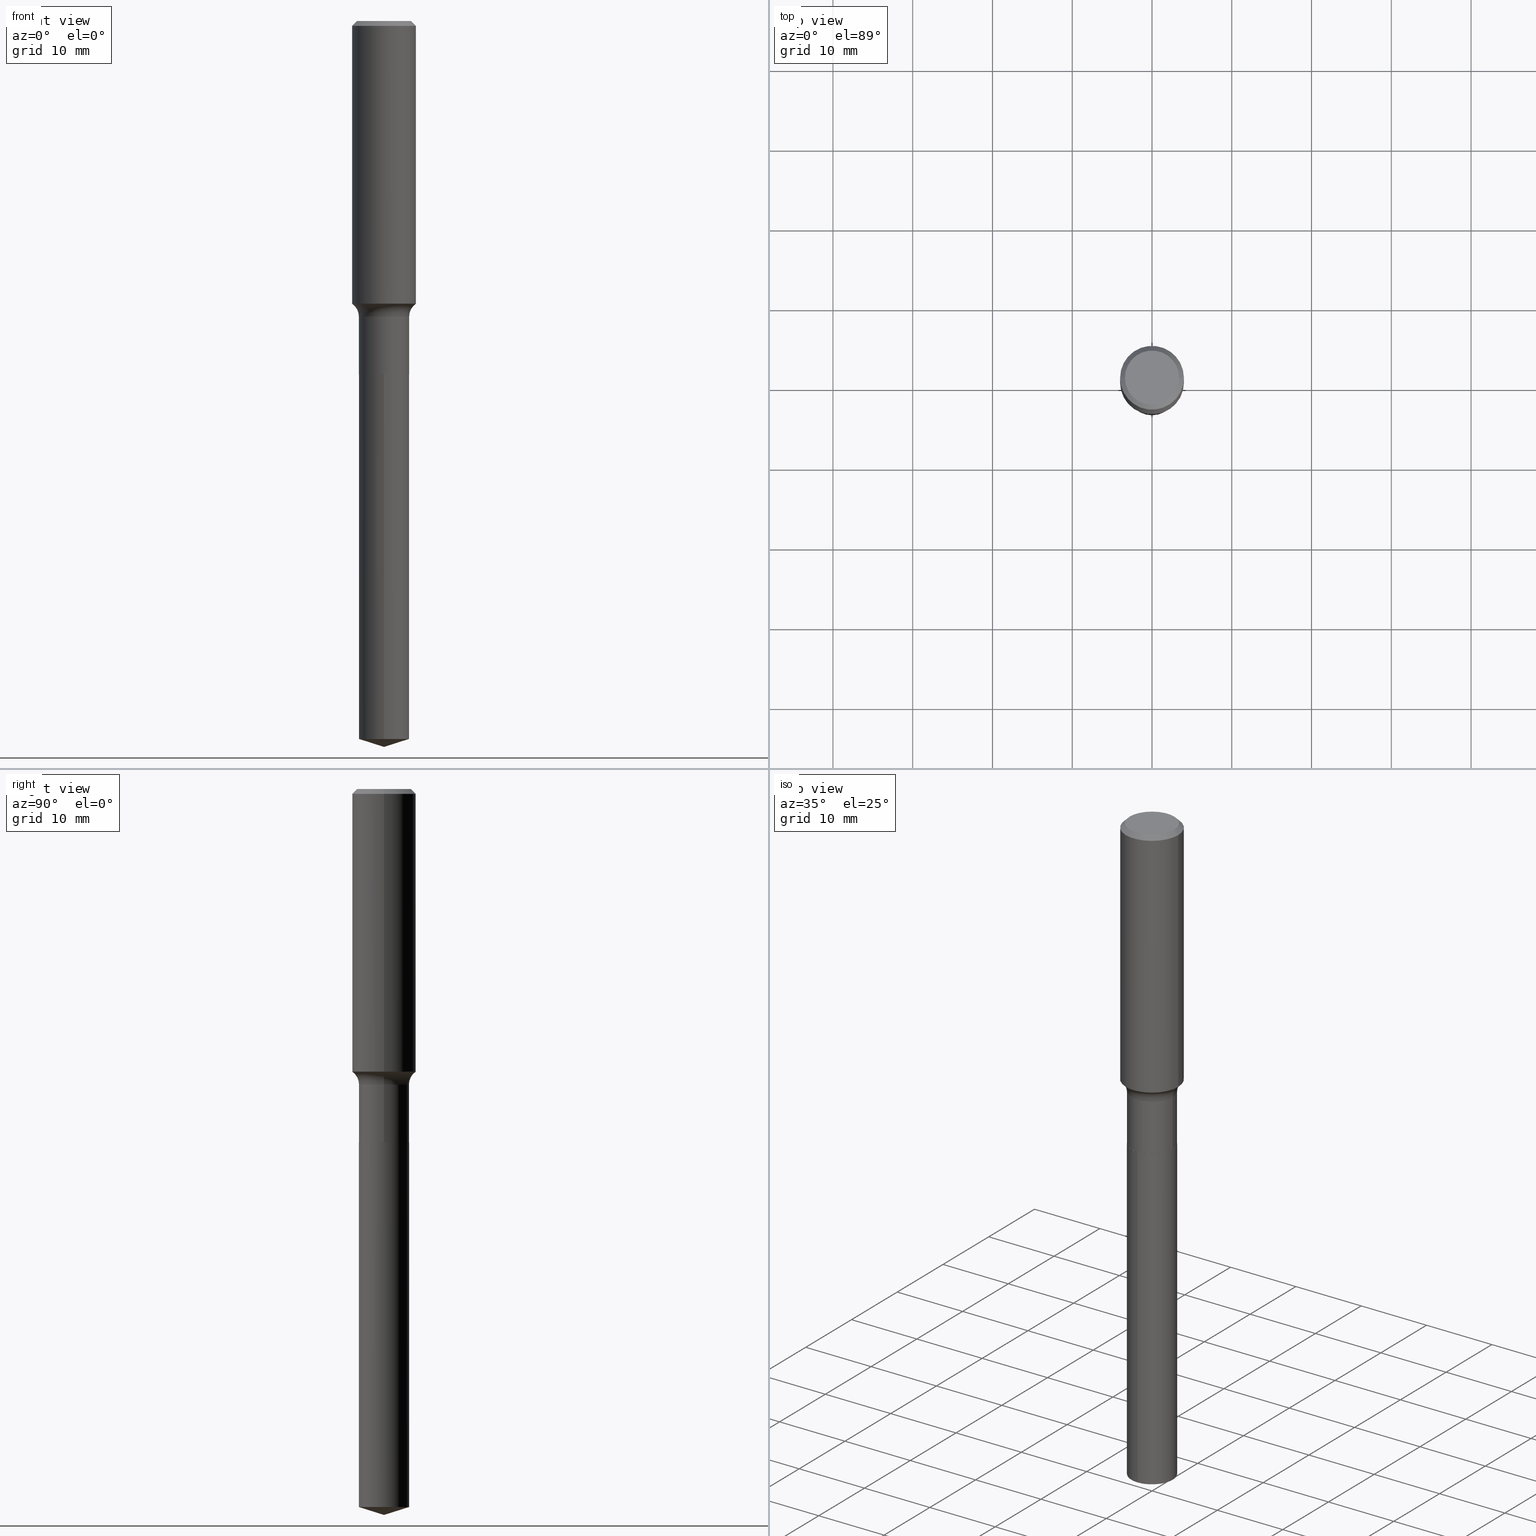
[diagram: canonical four-view strip — front | top / right | iso, engineering-drawing reading convention]
A machine part, canonical four-view strip (front | top / right | iso — engineering-drawing reading convention). The complete STEP part file that produces these views, byte-faithful:
ISO-10303-21;
HEADER;
FILE_DESCRIPTION (( 'STEP AP203' ),
    '1' );
FILE_NAME ('64135.STEP',
    '2024-04-19T15:18:33',
    ( '' ),
    ( '' ),
    'SwSTEP 2.0',
    'SolidWorks 2023',
    '' );
FILE_SCHEMA (( 'CONFIG_CONTROL_DESIGN' ));
ENDSEC;

DATA;
#1 = EDGE_CURVE ( 'NONE', #79, #7, #475, .T. ) ;
#2 = CALENDAR_DATE ( 2024, 19, 4 ) ;
#3 = CONICAL_SURFACE ( 'NONE', #369, 0.1575000000000000011, 0.7853981633974447263 ) ;
#4 = ORIENTED_EDGE ( 'NONE', *, *, #486, .F. ) ;
#5 = PLANE ( 'NONE',  #53 ) ;
#6 = CC_DESIGN_APPROVAL ( #67, ( #309 ) ) ;
#7 = VERTEX_POINT ( 'NONE', #90 ) ;
#8 = APPROVAL ( #16, 'UNSPECIFIED' ) ;
#9 = VERTEX_POINT ( 'NONE', #329 ) ;
#10 = CONICAL_SURFACE ( 'NONE', #306, 0.1234999999999999987, 0.7853981633975507526 ) ;
#11 = EDGE_LOOP ( 'NONE', ( #439, #201, #348, #152 ) ) ;
#12 = CIRCLE ( 'NONE', #465, 0.1239999999999999991 ) ;
#13 = PRODUCT_DEFINITION_FORMATION_WITH_SPECIFIED_SOURCE ( 'ANY', '', #284, .NOT_KNOWN. ) ;
#14 = ADVANCED_FACE ( 'NONE', ( #102 ), #214, .T. ) ;
#15 = EDGE_LOOP ( 'NONE', ( #200, #193, #415, #398 ) ) ;
#16 = APPROVAL_STATUS ( 'not_yet_approved' ) ;
#17 = VECTOR ( 'NONE', #253, 39.37007874015748143 ) ;
#18 = EDGE_LOOP ( 'NONE', ( #191, #434 ) ) ;
#19 = CARTESIAN_POINT ( 'NONE',  ( 3.567694441343495447E-29, -5.093722125238264272E-15, -1.458899999999999864 ) ) ;
#20 = CARTESIAN_POINT ( 'NONE',  ( 0.2019999999999999574, -6.504280586130890432E-15, -1.458899999999999864 ) ) ;
#21 = CARTESIAN_POINT ( 'NONE',  ( 0.1575000000000000011, -1.163014681279185964E-15, -0.02362500000000015282 ) ) ;
#22 = CIRCLE ( 'NONE', #84, 0.1338749999999999940 ) ;
#23 = CC_DESIGN_APPROVAL ( #278, ( #13 ) ) ;
#24 = CARTESIAN_POINT ( 'NONE',  ( 5.777420054612421980E-31, -8.248624663016985234E-17, -0.02362500000000015282 ) ) ;
#25 = CARTESIAN_POINT ( 'NONE',  ( 8.761492879941189583E-29, -1.250877010586368269E-14, -3.582699999999999996 ) ) ;
#26 = DIRECTION ( 'NONE',  ( 0.000000000000000000, 0.000000000000000000, 1.000000000000000000 ) ) ;
#27 = CARTESIAN_POINT ( 'NONE',  ( 4.263919410464404773E-29, -6.087746862406909425E-15, -1.743600000000000261 ) ) ;
#28 = LINE ( 'NONE', #202, #355 ) ;
#29 = DIRECTION ( 'NONE',  ( -2.445500008357157886E-29, 3.491436655556893596E-15, 1.000000000000000000 ) ) ;
#30 = ORIENTED_EDGE ( 'NONE', *, *, #263, .F. ) ;
#31 = CARTESIAN_POINT ( 'NONE',  ( 0.1575000000000001676, -5.969872642905350686E-15, -1.394839481737968789 ) ) ;
#32 = DIRECTION ( 'NONE',  ( -6.659769872151628144E-15, -0.9537169507482261555, 0.3007057995042750620 ) ) ;
#33 = DIRECTION ( 'NONE',  ( -6.982962677686265922E-15, -1.000000000000000000, 3.500519750498720604E-15 ) ) ;
#34 = DIRECTION ( 'NONE',  ( -2.445468806185136597E-29, 3.491481338843145583E-15, 1.000000000000000000 ) ) ;
#35 =( NAMED_UNIT ( * ) SI_UNIT ( $, .STERADIAN. ) SOLID_ANGLE_UNIT ( ) );
#36 = DIRECTION ( 'NONE',  ( -2.445468806185136877E-29, 3.491481338843145188E-15, 1.000000000000000000 ) ) ;
#37 = AXIS2_PLACEMENT_3D ( 'NONE', #215, #339, #373 ) ;
#38 = APPROVAL_STATUS ( 'not_yet_approved' ) ;
#39 = AXIS2_PLACEMENT_3D ( 'NONE', #473, #140, #63 ) ;
#40 = DIRECTION ( 'NONE',  ( -2.438088387897960049E-29, 3.491481338843145188E-15, 1.000000000000000000 ) ) ;
#41 = VERTEX_POINT ( 'NONE', #92 ) ;
#42 = PERSON_AND_ORGANIZATION ( #224, #330 ) ;
#43 = ORIENTED_EDGE ( 'NONE', *, *, #178, .F. ) ;
#44 = DIRECTION ( 'NONE',  ( 1.000000000000000000, -6.982962677686268288E-15, 4.883557194083113462E-29 ) ) ;
#45 = ADVANCED_FACE ( 'NONE', ( #405 ), #10, .T. ) ;
#46 = EDGE_LOOP ( 'NONE', ( #123, #422, #184 ) ) ;
#47 = EDGE_CURVE ( 'NONE', #356, #233, #137, .T. ) ;
#48 = ORIENTED_EDGE ( 'NONE', *, *, #104, .F. ) ;
#49 = PERSON_AND_ORGANIZATION ( #224, #330 ) ;
#50 = LOCAL_TIME ( 11, 18, 33.00000000000000000, #268 ) ;
#51 = VERTEX_POINT ( 'NONE', #56 ) ;
#52 = EDGE_LOOP ( 'NONE', ( #164, #275, #391, #225 ) ) ;
#53 = AXIS2_PLACEMENT_3D ( 'NONE', #108, #40, #266 ) ;
#54 = CARTESIAN_POINT ( 'NONE',  ( 8.761493834334397547E-29, -1.250877010586368269E-14, -3.582699999999999996 ) ) ;
#55 = DIRECTION ( 'NONE',  ( -2.445468806185136597E-29, 3.491481338843145583E-15, 1.000000000000000000 ) ) ;
#56 = CARTESIAN_POINT ( 'NONE',  ( -0.1234999999999999987, -5.209323097238496402E-15, -1.744100000000000206 ) ) ;
#57 = DIRECTION ( 'NONE',  ( -2.445500008357157886E-29, 3.491436655556893596E-15, 1.000000000000000000 ) ) ;
#58 = COORDINATED_UNIVERSAL_TIME_OFFSET ( 5, 0, .BEHIND. ) ;
#59 = LINE ( 'NONE', #300, #378 ) ;
#60 = VECTOR ( 'NONE', #36, 39.37007874015748143 ) ;
#61 = AXIS2_PLACEMENT_3D ( 'NONE', #73, #316, #418 ) ;
#62 = DIRECTION ( 'NONE',  ( -1.000000000000000000, 7.105427357600997914E-15, 0.000000000000000000 ) ) ;
#63 = DIRECTION ( 'NONE',  ( 1.000000000000000000, -6.982962677686266711E-15, 4.876176775795935232E-29 ) ) ;
#64 = CARTESIAN_POINT ( 'NONE',  ( 8.665826624568987053E-29, -1.237234316511408232E-14, -3.543602950179006061 ) ) ;
#65 = CYLINDRICAL_SURFACE ( 'NONE', #158, 0.1239999999999999852 ) ;
#66 = DIRECTION ( 'NONE',  ( -2.445500008357157886E-29, 3.491436655556893596E-15, 1.000000000000000000 ) ) ;
#67 = APPROVAL ( #38, 'UNSPECIFIED' ) ;
#68 = AXIS2_PLACEMENT_3D ( 'NONE', #458, #489, #310 ) ;
#69 = CARTESIAN_POINT ( 'NONE',  ( 0.1575000000000000844, -1.099816621735587677E-15, 7.679978421878603638E-30 ) ) ;
#70 = AXIS2_PLACEMENT_3D ( 'NONE', #20, #243, #338 ) ;
#71 = LOCAL_TIME ( 11, 18, 33.00000000000000000, #452 ) ;
#72 = PERSON_AND_ORGANIZATION ( #224, #330 ) ;
#73 = CARTESIAN_POINT ( 'NONE',  ( 8.665826624568987053E-29, -1.237234316511408232E-14, -3.543602950179006061 ) ) ;
#74 = ORIENTED_EDGE ( 'NONE', *, *, #298, .T. ) ;
#75 = ORIENTED_EDGE ( 'NONE', *, *, #423, .F. ) ;
#76 = APPROVAL_DATE_TIME ( #187, #67 ) ;
#77 = ORIENTED_EDGE ( 'NONE', *, *, #474, .F. ) ;
#78 = PERSON_AND_ORGANIZATION_ROLE ( 'creator' ) ;
#79 = VERTEX_POINT ( 'NONE', #365 ) ;
#80 = ORIENTED_EDGE ( 'NONE', *, *, #344, .F. ) ;
#81 = CLOSED_SHELL ( 'NONE', ( #14, #440, #389, #295, #334 ) ) ;
#82 = ADVANCED_FACE ( 'NONE', ( #477 ), #146, .T. ) ;
#83 = ORIENTED_EDGE ( 'NONE', *, *, #486, .T. ) ;
#84 = AXIS2_PLACEMENT_3D ( 'NONE', #463, #113, #431 ) ;
#85 = DIRECTION ( 'NONE',  ( -6.982962677686265922E-15, -1.000000000000000000, 4.406206441393973340E-15 ) ) ;
#86 = AXIS2_PLACEMENT_3D ( 'NONE', #199, #331, #478 ) ;
#87 = VECTOR ( 'NONE', #410, 39.37007874015748143 ) ;
#88 = EDGE_CURVE ( 'NONE', #9, #314, #469, .T. ) ;
#89 = ADVANCED_FACE ( 'NONE', ( #294 ), #65, .T. ) ;
#90 = CARTESIAN_POINT ( 'NONE',  ( -0.1239999999999999575, -4.709661501480063019E-15, -1.458899999999999864 ) ) ;
#91 = CYLINDRICAL_SURFACE ( 'NONE', #147, 0.1575000000000000844 ) ;
#92 = CARTESIAN_POINT ( 'NONE',  ( -8.658873720330101554E-16, -0.1240000000000123503, -3.543602950179005617 ) ) ;
#93 = DIRECTION ( 'NONE',  ( -2.445468806185136597E-29, 3.491481338843145583E-15, 1.000000000000000000 ) ) ;
#94 = CARTESIAN_POINT ( 'NONE',  ( -0.1240000000000000130, -4.709661501480063019E-15, -1.743600000000000261 ) ) ;
#95 = EDGE_LOOP ( 'NONE', ( #74, #148 ) ) ;
#96 = CARTESIAN_POINT ( 'NONE',  ( -8.658873720330542330E-16, -0.1240000000000060915, -1.744099999999999540 ) ) ;
#97 = DIRECTION ( 'NONE',  ( 1.000000000000000000, -6.982962677686268288E-15, 4.883557194083113462E-29 ) ) ;
#98 = CIRCLE ( 'NONE', #449, 0.1239999999999999991 ) ;
#99 = VECTOR ( 'NONE', #103, 39.37007874015748854 ) ;
#100 = ORIENTED_EDGE ( 'NONE', *, *, #432, .F. ) ;
#101 = EDGE_CURVE ( 'NONE', #197, #41, #181, .T. ) ;
#102 = FACE_OUTER_BOUND ( 'NONE', #354, .T. ) ;
#103 = DIRECTION ( 'NONE',  ( 6.776566513254254982E-15, 0.9537169507482283759, 0.3007057995042684562 ) ) ;
#104 = EDGE_CURVE ( 'NONE', #462, #51, #239, .T. ) ;
#105 = CALENDAR_DATE ( 2024, 19, 4 ) ;
#106 = CIRCLE ( 'NONE', #37, 0.1338749999999999940 ) ;
#107 = AXIS2_PLACEMENT_3D ( 'NONE', #483, #481, #136 ) ;
#108 = CARTESIAN_POINT ( 'NONE',  ( 4.265142144867497014E-29, -6.089492603076330929E-15, -1.744100000000000206 ) ) ;
#109 = EDGE_LOOP ( 'NONE', ( #80, #251, #112, #77 ) ) ;
#110 = DATE_TIME_ROLE ( 'creation_date' ) ;
#111 = EDGE_CURVE ( 'NONE', #162, #9, #229, .T. ) ;
#112 = ORIENTED_EDGE ( 'NONE', *, *, #111, .T. ) ;
#113 = DIRECTION ( 'NONE',  ( -2.445468806185136597E-29, 3.491481338843145583E-15, 1.000000000000000000 ) ) ;
#114 = AXIS2_PLACEMENT_3D ( 'NONE', #291, #244, #368 ) ;
#115 =( GEOMETRIC_REPRESENTATION_CONTEXT ( 3 ) GLOBAL_UNCERTAINTY_ASSIGNED_CONTEXT ( ( #304 ) ) GLOBAL_UNIT_ASSIGNED_CONTEXT ( ( #480, #212, #35 ) ) REPRESENTATION_CONTEXT ( 'NONE', 'WORKASPACE' ) );
#116 = CARTESIAN_POINT ( 'NONE',  ( 0.1239999999999999991, -6.953634234440005961E-15, -1.743600000000000261 ) ) ;
#117 = CC_DESIGN_PERSON_AND_ORGANIZATION_ASSIGNMENT ( #264, #353, ( #13 ) ) ;
#118 = ORIENTED_EDGE ( 'NONE', *, *, #196, .T. ) ;
#119 = DIRECTION ( 'NONE',  ( -2.445468806185136597E-29, 3.491481338843145583E-15, 1.000000000000000000 ) ) ;
#120 = DESIGN_CONTEXT ( 'detailed design', #254, 'design' ) ;
#121 = DIRECTION ( 'NONE',  ( -2.445500008357157886E-29, 3.491436655556893596E-15, 1.000000000000000000 ) ) ;
#122 = ORIENTED_EDGE ( 'NONE', *, *, #178, .T. ) ;
#123 = ORIENTED_EDGE ( 'NONE', *, *, #101, .F. ) ;
#124 = CIRCLE ( 'NONE', #131, 0.1239999999999999991 ) ;
#125 = CARTESIAN_POINT ( 'NONE',  ( 4.265142144867497014E-29, -6.089492603076330929E-15, -1.744100000000000206 ) ) ;
#126 = EDGE_LOOP ( 'NONE', ( #319, #258, #160, #75 ) ) ;
#127 = ADVANCED_FACE ( 'NONE', ( #390 ), #153, .T. ) ;
#128 = DIRECTION ( 'NONE',  ( -6.982962677686265922E-15, -1.000000000000000000, 4.406206441393973340E-15 ) ) ;
#129 = FACE_OUTER_BOUND ( 'NONE', #109, .T. ) ;
#130 = DIRECTION ( 'NONE',  ( -2.445468806185136877E-29, 3.491481338843145188E-15, 1.000000000000000000 ) ) ;
#131 = AXIS2_PLACEMENT_3D ( 'NONE', #308, #180, #343 ) ;
#132 = ADVANCED_FACE ( 'NONE', ( #425 ), #194, .T. ) ;
#133 = DIRECTION ( 'NONE',  ( -2.445468806185136597E-29, 3.491481338843145583E-15, 1.000000000000000000 ) ) ;
#134 = CARTESIAN_POINT ( 'NONE',  ( 3.567694441343495447E-29, -5.093722125238264272E-15, -1.458899999999999864 ) ) ;
#135 = APPLICATION_CONTEXT ( 'configuration controlled 3d designs of mechanical parts and assemblies' ) ;
#136 = DIRECTION ( 'NONE',  ( 1.000000000000000000, -6.982962677686265922E-15, 0.000000000000000000 ) ) ;
#137 = CIRCLE ( 'NONE', #165, 0.1239999999999999991 ) ;
#138 = CARTESIAN_POINT ( 'NONE',  ( 4.265142144867497014E-29, -6.089492603076330929E-15, -1.744100000000000206 ) ) ;
#139 = LINE ( 'NONE', #337, #397 ) ;
#140 = DIRECTION ( 'NONE',  ( -2.445468806185136597E-29, 3.491481338843145583E-15, 1.000000000000000000 ) ) ;
#141 = DATE_AND_TIME ( #182, #50 ) ;
#142 = CARTESIAN_POINT ( 'NONE',  ( 0.1338749999999999940, -1.040731925365424925E-15, 4.101342130351393887E-18 ) ) ;
#143 =( LENGTH_UNIT ( ) NAMED_UNIT ( * ) SI_UNIT ( $, .METRE. ) );
#144 = DIRECTION ( 'NONE',  ( 1.000000000000000000, -6.982962677686267499E-15, 0.000000000000000000 ) ) ;
#145 = CARTESIAN_POINT ( 'NONE',  ( 3.567694441343495447E-29, -5.093722125238264272E-15, -1.458899999999999864 ) ) ;
#146 = CONICAL_SURFACE ( 'NONE', #114, 0.1234999999999999987, 0.7853981633975507526 ) ;
#147 = AXIS2_PLACEMENT_3D ( 'NONE', #248, #93, #226 ) ;
#148 = ORIENTED_EDGE ( 'NONE', *, *, #423, .T. ) ;
#149 = DIMENSIONAL_EXPONENTS ( 1.000000000000000000, 0.000000000000000000, 0.000000000000000000, 0.000000000000000000, 0.000000000000000000, 0.000000000000000000, 0.000000000000000000 ) ;
#150 = DIRECTION ( 'NONE',  ( -1.000000000000000000, 6.982962677686265922E-15, 0.000000000000000000 ) ) ;
#151 = PERSON_AND_ORGANIZATION ( #224, #330 ) ;
#152 = ORIENTED_EDGE ( 'NONE', *, *, #315, .F. ) ;
#153 = CONICAL_SURFACE ( 'NONE', #442, 0.1575000000000000011, 0.7853981633974447263 ) ;
#154 = LOCAL_TIME ( 11, 18, 33.00000000000000000, #426 ) ;
#155 = ORIENTED_EDGE ( 'NONE', *, *, #101, .T. ) ;
#156 = ADVANCED_FACE ( 'NONE', ( #492 ), #262, .F. ) ;
#157 = ORIENTED_EDGE ( 'NONE', *, *, #352, .F. ) ;
#158 = AXIS2_PLACEMENT_3D ( 'NONE', #169, #133, #340 ) ;
#159 = ORIENTED_EDGE ( 'NONE', *, *, #372, .F. ) ;
#160 = ORIENTED_EDGE ( 'NONE', *, *, #186, .T. ) ;
#161 = EDGE_LOOP ( 'NONE', ( #100, #155, #285 ) ) ;
#162 = VERTEX_POINT ( 'NONE', #31 ) ;
#163 = PERSON_AND_ORGANIZATION_ROLE ( 'design_owner' ) ;
#164 = ORIENTED_EDGE ( 'NONE', *, *, #104, .T. ) ;
#165 = AXIS2_PLACEMENT_3D ( 'NONE', #27, #242, #376 ) ;
#166 = FACE_OUTER_BOUND ( 'NONE', #161, .T. ) ;
#167 = CC_DESIGN_APPROVAL ( #8, ( #428 ) ) ;
#168 = EDGE_CURVE ( 'NONE', #246, #183, #106, .T. ) ;
#169 = CARTESIAN_POINT ( 'NONE',  ( 0.000000000000000000, 0.000000000000000000, 0.000000000000000000 ) ) ;
#170 = DIRECTION ( 'NONE',  ( 0.7071067811866199593, -2.468850131083015945E-15, 0.7071067811864750752 ) ) ;
#171 = CARTESIAN_POINT ( 'NONE',  ( 5.777420054612421980E-31, -8.248624663016985234E-17, -0.02362500000000015282 ) ) ;
#172 = DIRECTION ( 'NONE',  ( -2.445468806185136597E-29, 3.491481338843145583E-15, 1.000000000000000000 ) ) ;
#173 = CARTESIAN_POINT ( 'NONE',  ( -0.1338749999999999940, 9.760872517903331886E-16, 4.101342130337804525E-18 ) ) ;
#174 = DIRECTION ( 'NONE',  ( -1.000000000000000000, 6.982962677686265922E-15, 0.000000000000000000 ) ) ;
#175 = APPLICATION_PROTOCOL_DEFINITION ( 'international standard', 'config_control_design', 1994, #135 ) ;
#176 = CONICAL_SURFACE ( 'NONE', #436, 124.8659371009144934, 1.265363707695890350 ) ;
#177 = DIRECTION ( 'NONE',  ( -2.445500008357157886E-29, 3.491436655556893596E-15, 1.000000000000000000 ) ) ;
#178 = EDGE_CURVE ( 'NONE', #183, #314, #28, .T. ) ;
#179 = SHAPE_DEFINITION_REPRESENTATION ( #195, #296 ) ;
#180 = DIRECTION ( 'NONE',  ( -2.445500008357157886E-29, 3.491436655556893596E-15, 1.000000000000000000 ) ) ;
#181 = LINE ( 'NONE', #345, #367 ) ;
#182 = CALENDAR_DATE ( 2024, 19, 4 ) ;
#183 = VERTEX_POINT ( 'NONE', #173 ) ;
#184 = ORIENTED_EDGE ( 'NONE', *, *, #407, .F. ) ;
#185 = AXIS2_PLACEMENT_3D ( 'NONE', #138, #57, #128 ) ;
#186 = EDGE_CURVE ( 'NONE', #41, #276, #364, .T. ) ;
#187 = DATE_AND_TIME ( #2, #154 ) ;
#188 = FACE_OUTER_BOUND ( 'NONE', #126, .T. ) ;
#189 = CC_DESIGN_PERSON_AND_ORGANIZATION_ASSIGNMENT ( #471, #163, ( #284 ) ) ;
#190 = VERTEX_POINT ( 'NONE', #402 ) ;
#191 = ORIENTED_EDGE ( 'NONE', *, *, #325, .T. ) ;
#192 = CIRCLE ( 'NONE', #234, 0.1239999999999999575 ) ;
#193 = ORIENTED_EDGE ( 'NONE', *, *, #241, .F. ) ;
#194 = CYLINDRICAL_SURFACE ( 'NONE', #288, 0.1575000000000000844 ) ;
#195 = PRODUCT_DEFINITION_SHAPE ( 'NONE', 'NONE',  #428 ) ;
#196 = EDGE_CURVE ( 'NONE', #462, #233, #139, .T. ) ;
#197 = VERTEX_POINT ( 'NONE', #25 ) ;
#198 = TOROIDAL_SURFACE ( 'NONE', #360, 0.2019999999999999574, 0.07799999999999999989 ) ;
#199 = CARTESIAN_POINT ( 'NONE',  ( -5.014852121625167883E-47, 7.159879756154482429E-33, 2.050671065172242981E-18 ) ) ;
#200 = ORIENTED_EDGE ( 'NONE', *, *, #1, .F. ) ;
#201 = ORIENTED_EDGE ( 'NONE', *, *, #388, .T. ) ;
#202 = CARTESIAN_POINT ( 'NONE',  ( -0.1575000000000000011, 1.017330375105417098E-15, -0.02362500000000015282 ) ) ;
#203 = DIRECTION ( 'NONE',  ( 1.000000000000000000, -6.982962677686265922E-15, 0.000000000000000000 ) ) ;
#204 = EDGE_CURVE ( 'NONE', #233, #356, #98, .T. ) ;
#205 = DIRECTION ( 'NONE',  ( 2.445468806185136597E-29, -3.491481338843145583E-15, -1.000000000000000000 ) ) ;
#206 = ORIENTED_EDGE ( 'NONE', *, *, #372, .T. ) ;
#207 = CALENDAR_DATE ( 2024, 19, 4 ) ;
#208 = AXIS2_PLACEMENT_3D ( 'NONE', #24, #172, #482 ) ;
#209 = VECTOR ( 'NONE', #302, 39.37007874015748143 ) ;
#210 = FACE_OUTER_BOUND ( 'NONE', #466, .T. ) ;
#211 = TOROIDAL_SURFACE ( 'NONE', #217, 0.2019999999999999574, 0.07799999999999999989 ) ;
#212 =( NAMED_UNIT ( * ) PLANE_ANGLE_UNIT ( ) SI_UNIT ( $, .RADIAN. ) );
#213 = LOCAL_TIME ( 11, 18, 33.00000000000000000, #274 ) ;
#214 = CYLINDRICAL_SURFACE ( 'NONE', #185, 0.1239999999999999991 ) ;
#215 = CARTESIAN_POINT ( 'NONE',  ( -1.002970424325033577E-46, 1.431975951230896486E-32, 4.101342130344485961E-18 ) ) ;
#216 = EDGE_CURVE ( 'NONE', #230, #7, #192, .T. ) ;
#217 = AXIS2_PLACEMENT_3D ( 'NONE', #292, #448, #97 ) ;
#218 = CC_DESIGN_DATE_AND_TIME_ASSIGNMENT ( #141, #110, ( #428 ) ) ;
#219 = SECURITY_CLASSIFICATION_LEVEL ( 'unclassified' ) ;
#220 = DIRECTION ( 'NONE',  ( 1.000000000000000000, -6.982962677686267499E-15, 0.000000000000000000 ) ) ;
#221 = CYLINDRICAL_SURFACE ( 'NONE', #400, 0.1239999999999999991 ) ;
#222 = ADVANCED_FACE ( 'NONE', ( #129 ), #91, .T. ) ;
#223 = PERSON_AND_ORGANIZATION_ROLE ( 'classification_officer' ) ;
#224 = PERSON ( 'UNSPECIFIED', 'UNSPECIFIED', 'UNSPECIFIED', ('UNSPECIFIED'), ('UNSPECIFIED'), ('UNSPECIFIED') ) ;
#225 = ORIENTED_EDGE ( 'NONE', *, *, #196, .F. ) ;
#226 = DIRECTION ( 'NONE',  ( 1.000000000000000000, -6.982962677686267499E-15, 4.876176775795936353E-29 ) ) ;
#227 = ORIENTED_EDGE ( 'NONE', *, *, #399, .F. ) ;
#228 = CIRCLE ( 'NONE', #406, 0.1575000000000001676 ) ;
#229 = LINE ( 'NONE', #69, #60 ) ;
#230 = VERTEX_POINT ( 'NONE', #491 ) ;
#231 = ORIENTED_EDGE ( 'NONE', *, *, #1, .T. ) ;
#232 = DIRECTION ( 'NONE',  ( -6.982962677686265922E-15, -1.000000000000000000, 4.406206441393973340E-15 ) ) ;
#233 = VERTEX_POINT ( 'NONE', #116 ) ;
#234 = AXIS2_PLACEMENT_3D ( 'NONE', #19, #327, #472 ) ;
#235 = LINE ( 'NONE', #237, #209 ) ;
#236 = DIRECTION ( 'NONE',  ( 2.445500008357157606E-29, -3.491436655556893596E-15, -1.000000000000000000 ) ) ;
#237 = CARTESIAN_POINT ( 'NONE',  ( 0.1239999999999999852, -8.658873720330969301E-16, 6.046459201986959234E-30 ) ) ;
#238 = PRODUCT_RELATED_PRODUCT_CATEGORY ( 'detail', '', ( #284 ) ) ;
#239 = CIRCLE ( 'NONE', #68, 0.1234999999999999987 ) ;
#240 = CIRCLE ( 'NONE', #450, 0.1575000000000000011 ) ;
#241 = EDGE_CURVE ( 'NONE', #162, #79, #228, .T. ) ;
#242 = DIRECTION ( 'NONE',  ( -2.445468806185136597E-29, 3.491481338843145583E-15, 1.000000000000000000 ) ) ;
#243 = DIRECTION ( 'NONE',  ( -6.982962677686266711E-15, -1.000000000000000000, 3.491481338843145583E-15 ) ) ;
#244 = DIRECTION ( 'NONE',  ( -2.445468806185136597E-29, 3.491481338843145583E-15, 1.000000000000000000 ) ) ;
#245 = DIRECTION ( 'NONE',  ( -6.982962677686265922E-15, -1.000000000000000000, 3.500519750498720604E-15 ) ) ;
#246 = VERTEX_POINT ( 'NONE', #142 ) ;
#247 = LINE ( 'NONE', #54, #99 ) ;
#248 = CARTESIAN_POINT ( 'NONE',  ( 0.000000000000000000, 0.000000000000000000, 0.000000000000000000 ) ) ;
#249 = AXIS2_PLACEMENT_3D ( 'NONE', #125, #359, #85 ) ;
#250 = DIRECTION ( 'NONE',  ( -0.7071067811866199593, 7.493145998870616062E-15, 0.7071067811864750752 ) ) ;
#251 = ORIENTED_EDGE ( 'NONE', *, *, #263, .T. ) ;
#252 = DIRECTION ( 'NONE',  ( 1.000000000000000000, -6.982962677686265133E-15, 0.000000000000000000 ) ) ;
#253 = DIRECTION ( 'NONE',  ( 0.7071067811865450192, -7.319954787623246579E-15, -0.7071067811865500152 ) ) ;
#254 = APPLICATION_CONTEXT ( 'configuration controlled 3d designs of mechanical parts and assemblies' ) ;
#255 = CARTESIAN_POINT ( 'NONE',  ( -8.751808942784411775E-28, 1.249492880075637646E-13, 35.78737874015747877 ) ) ;
#256 = CARTESIAN_POINT ( 'NONE',  ( 4.263919410464404773E-29, -6.087746862406909425E-15, -1.743600000000000261 ) ) ;
#257 = DIRECTION ( 'NONE',  ( 1.000000000000000000, -6.982962677686265922E-15, 0.000000000000000000 ) ) ;
#258 = ORIENTED_EDGE ( 'NONE', *, *, #401, .T. ) ;
#259 = PERSON_AND_ORGANIZATION_ROLE ( 'creator' ) ;
#260 = AXIS2_PLACEMENT_3D ( 'NONE', #444, #445, #62 ) ;
#261 = LOCAL_TIME ( 11, 18, 33.00000000000000000, #58 ) ;
#262 = PLANE ( 'NONE',  #86 ) ;
#263 = EDGE_CURVE ( 'NONE', #79, #162, #455, .T. ) ;
#264 = PERSON_AND_ORGANIZATION ( #224, #330 ) ;
#265 = EDGE_LOOP ( 'NONE', ( #460, #83, #413, #43 ) ) ;
#266 = DIRECTION ( 'NONE',  ( 1.000000000000000000, -6.982962677686265922E-15, 4.876176775795935793E-29 ) ) ;
#267 = ORIENTED_EDGE ( 'NONE', *, *, #325, .F. ) ;
#268 = COORDINATED_UNIVERSAL_TIME_OFFSET ( 5, 0, .BEHIND. ) ;
#269 = CARTESIAN_POINT ( 'NONE',  ( 3.411036442225645245E-29, -4.870056021169762416E-15, -1.394839481737968789 ) ) ;
#270 = ORIENTED_EDGE ( 'NONE', *, *, #298, .F. ) ;
#271 = DATE_AND_TIME ( #105, #71 ) ;
#272 = FACE_OUTER_BOUND ( 'NONE', #95, .T. ) ;
#273 = CIRCLE ( 'NONE', #249, 0.1239999999999999991 ) ;
#274 = COORDINATED_UNIVERSAL_TIME_OFFSET ( 5, 0, .BEHIND. ) ;
#275 = ORIENTED_EDGE ( 'NONE', *, *, #352, .T. ) ;
#276 = VERTEX_POINT ( 'NONE', #305 ) ;
#277 = APPLICATION_PROTOCOL_DEFINITION ( 'international standard', 'config_control_design', 1994, #254 ) ;
#278 = APPROVAL ( #414, 'UNSPECIFIED' ) ;
#279 = APPROVAL_ROLE ( '' ) ;
#280 = ORIENTED_EDGE ( 'NONE', *, *, #47, .T. ) ;
#281 = AXIS2_PLACEMENT_3D ( 'NONE', #134, #451, #252 ) ;
#282 = ADVANCED_FACE ( 'NONE', ( #454 ), #5, .F. ) ;
#283 = CC_DESIGN_SECURITY_CLASSIFICATION ( #309, ( #13 ) ) ;
#284 = PRODUCT ( '64135', '64135', '', ( #341 ) ) ;
#285 = ORIENTED_EDGE ( 'NONE', *, *, #401, .F. ) ;
#286 = ORIENTED_EDGE ( 'NONE', *, *, #186, .F. ) ;
#287 = CARTESIAN_POINT ( 'NONE',  ( 4.265142144867497014E-29, -6.089492603076330929E-15, -1.744100000000000206 ) ) ;
#288 = AXIS2_PLACEMENT_3D ( 'NONE', #358, #320, #468 ) ;
#289 = VECTOR ( 'NONE', #250, 39.37007874015748143 ) ;
#290 = CARTESIAN_POINT ( 'NONE',  ( 8.810729923425668227E-16, 0.1239999999999939068, -1.744100000000000650 ) ) ;
#291 = CARTESIAN_POINT ( 'NONE',  ( 4.265142144867497014E-29, -6.089492603076330929E-15, -1.744100000000000206 ) ) ;
#292 = CARTESIAN_POINT ( 'NONE',  ( 3.567694441343495447E-29, -5.093722125238264272E-15, -1.458899999999999864 ) ) ;
#293 = DIRECTION ( 'NONE',  ( 1.000000000000000000, 0.000000000000000000, 0.000000000000000000 ) ) ;
#294 = FACE_OUTER_BOUND ( 'NONE', #11, .T. ) ;
#295 = ADVANCED_FACE ( 'NONE', ( #188 ), #221, .T. ) ;
#296 = ADVANCED_BREP_SHAPE_REPRESENTATION ( '64135', ( #336, #347, #317 ), #115 ) ;
#297 = CARTESIAN_POINT ( 'NONE',  ( -8.751808942784411775E-28, 1.249492880075637646E-13, 35.78737874015747877 ) ) ;
#298 = EDGE_CURVE ( 'NONE', #276, #313, #273, .T. ) ;
#299 = APPROVAL_PERSON_ORGANIZATION ( #419, #67, #346 ) ;
#300 = CARTESIAN_POINT ( 'NONE',  ( -0.1239999999999999852, 8.810729923425241256E-16, -6.099479511916081746E-30 ) ) ;
#301 = APPROVAL_ROLE ( '' ) ;
#302 = DIRECTION ( 'NONE',  ( -2.445468806185136877E-29, 3.491481338843145188E-15, 1.000000000000000000 ) ) ;
#303 = PERSON_AND_ORGANIZATION ( #224, #330 ) ;
#304 = UNCERTAINTY_MEASURE_WITH_UNIT (LENGTH_MEASURE( 1.000000000000000082E-05 ), #480, 'distance_accuracy_value', 'NONE');
#305 = CARTESIAN_POINT ( 'NONE',  ( -8.658873720330542330E-16, -0.1240000000000060915, -1.744099999999999540 ) ) ;
#306 = AXIS2_PLACEMENT_3D ( 'NONE', #287, #409, #203 ) ;
#307 = CARTESIAN_POINT ( 'NONE',  ( 4.265142144867497014E-29, -6.089492603076330929E-15, -1.744100000000000206 ) ) ;
#308 = CARTESIAN_POINT ( 'NONE',  ( 4.265142144867497014E-29, -6.089492603076330929E-15, -1.744100000000000206 ) ) ;
#309 = SECURITY_CLASSIFICATION ( '', '', #219 ) ;
#310 = DIRECTION ( 'NONE',  ( 1.000000000000000000, -6.982962677686265922E-15, 0.000000000000000000 ) ) ;
#311 = DATE_AND_TIME ( #207, #261 ) ;
#312 = EDGE_LOOP ( 'NONE', ( #157, #206, #118, #386 ) ) ;
#313 = VERTEX_POINT ( 'NONE', #318 ) ;
#314 = VERTEX_POINT ( 'NONE', #438 ) ;
#315 = EDGE_CURVE ( 'NONE', #233, #230, #235, .T. ) ;
#316 = DIRECTION ( 'NONE',  ( -2.445500008357157886E-29, 3.491436655556893596E-15, 1.000000000000000000 ) ) ;
#317 = AXIS2_PLACEMENT_3D ( 'NONE', #371, #26, #293 ) ;
#318 = CARTESIAN_POINT ( 'NONE',  ( 8.810729923426110975E-16, 0.1239999999999939068, -1.744100000000000650 ) ) ;
#319 = ORIENTED_EDGE ( 'NONE', *, *, #392, .F. ) ;
#320 = DIRECTION ( 'NONE',  ( -2.445468806185136597E-29, 3.491481338843145583E-15, 1.000000000000000000 ) ) ;
#321 = ADVANCED_FACE ( 'NONE', ( #382 ), #198, .F. ) ;
#322 = VECTOR ( 'NONE', #447, 39.37007874015748143 ) ;
#323 = CC_DESIGN_PERSON_AND_ORGANIZATION_ASSIGNMENT ( #42, #78, ( #428 ) ) ;
#324 = VECTOR ( 'NONE', #66, 39.37007874015748143 ) ;
#325 = EDGE_CURVE ( 'NONE', #183, #246, #22, .T. ) ;
#326 = ORIENTED_EDGE ( 'NONE', *, *, #392, .T. ) ;
#327 = DIRECTION ( 'NONE',  ( -2.445468806185136597E-29, 3.491481338843145583E-15, 1.000000000000000000 ) ) ;
#328 = LINE ( 'NONE', #488, #87 ) ;
#329 = CARTESIAN_POINT ( 'NONE',  ( 0.1575000000000000011, -1.182302868365756679E-15, -0.02362500000000015282 ) ) ;
#330 = ORGANIZATION ( 'UNSPECIFIED', 'UNSPECIFIED', '' ) ;
#331 = DIRECTION ( 'NONE',  ( 2.438088387897960049E-29, -3.491481338843145188E-15, -1.000000000000000000 ) ) ;
#332 = ORIENTED_EDGE ( 'NONE', *, *, #111, .F. ) ;
#333 = FACE_OUTER_BOUND ( 'NONE', #393, .T. ) ;
#334 = ADVANCED_FACE ( 'NONE', ( #272 ), #394, .F. ) ;
#335 = FACE_OUTER_BOUND ( 'NONE', #46, .T. ) ;
#336 = MANIFOLD_SOLID_BREP ( 'Body-Move/Copy2[1]', #81 ) ;
#337 = CARTESIAN_POINT ( 'NONE',  ( 0.1234999999999999987, -6.951888493770584457E-15, -1.744100000000000206 ) ) ;
#338 = DIRECTION ( 'NONE',  ( 1.000000000000000000, -6.982962677686270655E-15, 0.000000000000000000 ) ) ;
#339 = DIRECTION ( 'NONE',  ( -2.445468806185136597E-29, 3.491481338843145583E-15, 1.000000000000000000 ) ) ;
#340 = DIRECTION ( 'NONE',  ( 1.000000000000000000, -6.982962677686266711E-15, 4.876176775795935232E-29 ) ) ;
#341 = MECHANICAL_CONTEXT ( 'NONE', #135, 'mechanical' ) ;
#342 = CARTESIAN_POINT ( 'NONE',  ( 5.777420054612421980E-31, -8.248624663016985234E-17, -0.02362500000000015282 ) ) ;
#343 = DIRECTION ( 'NONE',  ( -6.982962677686265922E-15, -1.000000000000000000, 4.406206441393973340E-15 ) ) ;
#344 = EDGE_CURVE ( 'NONE', #79, #314, #328, .T. ) ;
#345 = CARTESIAN_POINT ( 'NONE',  ( 8.761384040524744436E-29, -1.250892597010278646E-14, -3.582699999999999996 ) ) ;
#346 = APPROVAL_ROLE ( '' ) ;
#347 = MANIFOLD_SOLID_BREP ( 'Body-Move/Copy2[2]', #385 ) ;
#348 = ORIENTED_EDGE ( 'NONE', *, *, #216, .F. ) ;
#349 = CIRCLE ( 'NONE', #70, 0.07799999999999999989 ) ;
#350 = DIRECTION ( 'NONE',  ( 2.445468806185136597E-29, -3.491481338843145583E-15, -1.000000000000000000 ) ) ;
#351 = ORIENTED_EDGE ( 'NONE', *, *, #407, .T. ) ;
#352 = EDGE_CURVE ( 'NONE', #51, #356, #412, .T. ) ;
#353 = PERSON_AND_ORGANIZATION_ROLE ( 'design_supplier' ) ;
#354 = EDGE_LOOP ( 'NONE', ( #351, #326, #270, #286 ) ) ;
#355 = VECTOR ( 'NONE', #487, 39.37007874015748143 ) ;
#356 = VERTEX_POINT ( 'NONE', #94 ) ;
#357 = ADVANCED_FACE ( 'NONE', ( #374 ), #3, .T. ) ;
#358 = CARTESIAN_POINT ( 'NONE',  ( 0.000000000000000000, 0.000000000000000000, 0.000000000000000000 ) ) ;
#359 = DIRECTION ( 'NONE',  ( -2.445500008357157886E-29, 3.491436655556893596E-15, 1.000000000000000000 ) ) ;
#360 = AXIS2_PLACEMENT_3D ( 'NONE', #145, #119, #44 ) ;
#361 = EDGE_CURVE ( 'NONE', #162, #230, #349, .T. ) ;
#362 = ORIENTED_EDGE ( 'NONE', *, *, #315, .T. ) ;
#363 = ADVANCED_FACE ( 'NONE', ( #333 ), #408, .T. ) ;
#364 = LINE ( 'NONE', #96, #322 ) ;
#365 = CARTESIAN_POINT ( 'NONE',  ( -0.1575000000000001676, -3.750951212347604024E-15, -1.394839481737968789 ) ) ;
#366 = DIRECTION ( 'NONE',  ( -2.445468806185136597E-29, 3.491481338843145583E-15, 1.000000000000000000 ) ) ;
#367 = VECTOR ( 'NONE', #32, 39.37007874015748854 ) ;
#368 = DIRECTION ( 'NONE',  ( 1.000000000000000000, -6.982962677686265922E-15, 0.000000000000000000 ) ) ;
#369 = AXIS2_PLACEMENT_3D ( 'NONE', #171, #205, #174 ) ;
#370 = DIRECTION ( 'NONE',  ( -2.445500008357157886E-29, 3.491436655556893596E-15, 1.000000000000000000 ) ) ;
#371 = CARTESIAN_POINT ( 'NONE',  ( 0.000000000000000000, 0.000000000000000000, 0.000000000000000000 ) ) ;
#372 = EDGE_CURVE ( 'NONE', #51, #462, #470, .T. ) ;
#373 = DIRECTION ( 'NONE',  ( 1.000000000000000000, -6.982962677686266711E-15, 4.876170806578254279E-29 ) ) ;
#374 = FACE_OUTER_BOUND ( 'NONE', #265, .T. ) ;
#375 = CC_DESIGN_PERSON_AND_ORGANIZATION_ASSIGNMENT ( #151, #223, ( #309 ) ) ;
#376 = DIRECTION ( 'NONE',  ( 1.000000000000000000, -6.982962677686262766E-15, 0.000000000000000000 ) ) ;
#377 = CARTESIAN_POINT ( 'NONE',  ( 0.1234999999999999987, -6.951888493770584457E-15, -1.744100000000000206 ) ) ;
#378 = VECTOR ( 'NONE', #130, 39.37007874015748143 ) ;
#379 = LINE ( 'NONE', #290, #324 ) ;
#380 = CALENDAR_DATE ( 2024, 19, 4 ) ;
#381 = CARTESIAN_POINT ( 'NONE',  ( 4.265142144867497014E-29, -6.089492603076330929E-15, -1.744100000000000206 ) ) ;
#382 = FACE_OUTER_BOUND ( 'NONE', #15, .T. ) ;
#383 = DATE_TIME_ROLE ( 'classification_date' ) ;
#384 = CARTESIAN_POINT ( 'NONE',  ( 3.411036442225645245E-29, -4.870056021169762416E-15, -1.394839481737968789 ) ) ;
#385 = CLOSED_SHELL ( 'NONE', ( #82, #357, #132, #395, #89, #363, #321, #222, #127, #156, #282, #45 ) ) ;
#386 = ORIENTED_EDGE ( 'NONE', *, *, #47, .F. ) ;
#387 = CIRCLE ( 'NONE', #281, 0.1239999999999999575 ) ;
#388 = EDGE_CURVE ( 'NONE', #356, #7, #59, .T. ) ;
#389 = ADVANCED_FACE ( 'NONE', ( #166 ), #176, .T. ) ;
#390 = FACE_OUTER_BOUND ( 'NONE', #433, .T. ) ;
#391 = ORIENTED_EDGE ( 'NONE', *, *, #204, .F. ) ;
#392 = EDGE_CURVE ( 'NONE', #190, #313, #379, .T. ) ;
#393 = EDGE_LOOP ( 'NONE', ( #456, #280, #362, #227 ) ) ;
#394 = PLANE ( 'NONE',  #443 ) ;
#395 = ADVANCED_FACE ( 'NONE', ( #210 ), #211, .F. ) ;
#396 = ORIENTED_EDGE ( 'NONE', *, *, #399, .T. ) ;
#397 = VECTOR ( 'NONE', #170, 39.37007874015748143 ) ;
#398 = ORIENTED_EDGE ( 'NONE', *, *, #216, .T. ) ;
#399 = EDGE_CURVE ( 'NONE', #7, #230, #387, .T. ) ;
#400 = AXIS2_PLACEMENT_3D ( 'NONE', #381, #121, #232 ) ;
#401 = EDGE_CURVE ( 'NONE', #190, #41, #435, .T. ) ;
#402 = CARTESIAN_POINT ( 'NONE',  ( 8.810729923426106044E-16, 0.1239999999999875785, -3.543602950179006950 ) ) ;
#403 = DIRECTION ( 'NONE',  ( 6.982962677686265922E-15, 1.000000000000000000, -3.491436655556893596E-15 ) ) ;
#404 = LINE ( 'NONE', #21, #17 ) ;
#405 = FACE_OUTER_BOUND ( 'NONE', #312, .T. ) ;
#406 = AXIS2_PLACEMENT_3D ( 'NONE', #269, #34, #144 ) ;
#407 = EDGE_CURVE ( 'NONE', #41, #190, #12, .T. ) ;
#408 = CYLINDRICAL_SURFACE ( 'NONE', #39, 0.1239999999999999852 ) ;
#409 = DIRECTION ( 'NONE',  ( -2.445468806185136597E-29, 3.491481338843145583E-15, 1.000000000000000000 ) ) ;
#410 = DIRECTION ( 'NONE',  ( -2.445468806185136877E-29, 3.491481338843145188E-15, 1.000000000000000000 ) ) ;
#411 = CARTESIAN_POINT ( 'NONE',  ( 5.777420054612421980E-31, -8.248624663016985234E-17, -0.02362500000000015282 ) ) ;
#412 = LINE ( 'NONE', #479, #289 ) ;
#413 = ORIENTED_EDGE ( 'NONE', *, *, #88, .T. ) ;
#414 = APPROVAL_STATUS ( 'not_yet_approved' ) ;
#415 = ORIENTED_EDGE ( 'NONE', *, *, #361, .T. ) ;
#416 = DIRECTION ( 'NONE',  ( -2.445468806185136597E-29, 3.491481338843145583E-15, 1.000000000000000000 ) ) ;
#417 = APPROVAL_PERSON_ORGANIZATION ( #49, #8, #279 ) ;
#418 = DIRECTION ( 'NONE',  ( -6.982962677686265922E-15, -1.000000000000000000, 4.406206441393973340E-15 ) ) ;
#419 = PERSON_AND_ORGANIZATION ( #224, #330 ) ;
#420 = ORIENTED_EDGE ( 'NONE', *, *, #88, .F. ) ;
#421 = APPROVAL_DATE_TIME ( #271, #278 ) ;
#422 = ORIENTED_EDGE ( 'NONE', *, *, #432, .T. ) ;
#423 = EDGE_CURVE ( 'NONE', #313, #276, #124, .T. ) ;
#424 = ORIENTED_EDGE ( 'NONE', *, *, #241, .T. ) ;
#425 = FACE_OUTER_BOUND ( 'NONE', #429, .T. ) ;
#426 = COORDINATED_UNIVERSAL_TIME_OFFSET ( 5, 0, .BEHIND. ) ;
#427 = ORIENTED_EDGE ( 'NONE', *, *, #361, .F. ) ;
#428 = PRODUCT_DEFINITION ( 'UNKNOWN', '', #13, #120 ) ;
#429 = EDGE_LOOP ( 'NONE', ( #424, #467, #420, #332 ) ) ;
#430 = CONICAL_SURFACE ( 'NONE', #485, 124.8659371009144934, 1.265363707695890350 ) ;
#431 = DIRECTION ( 'NONE',  ( 1.000000000000000000, -6.982962677686266711E-15, 4.876170806578254279E-29 ) ) ;
#432 = EDGE_CURVE ( 'NONE', #197, #190, #247, .T. ) ;
#433 = EDGE_LOOP ( 'NONE', ( #4, #267, #122, #464 ) ) ;
#434 = ORIENTED_EDGE ( 'NONE', *, *, #168, .T. ) ;
#435 = CIRCLE ( 'NONE', #61, 0.1239999999999999991 ) ;
#436 = AXIS2_PLACEMENT_3D ( 'NONE', #297, #370, #245 ) ;
#437 = APPROVAL_PERSON_ORGANIZATION ( #303, #278, #301 ) ;
#438 = CARTESIAN_POINT ( 'NONE',  ( -0.1575000000000000011, -1.357166325077807514E-15, -0.02362500000000015282 ) ) ;
#439 = ORIENTED_EDGE ( 'NONE', *, *, #204, .T. ) ;
#440 = ADVANCED_FACE ( 'NONE', ( #335 ), #430, .T. ) ;
#441 = EDGE_LOOP ( 'NONE', ( #48, #159 ) ) ;
#442 = AXIS2_PLACEMENT_3D ( 'NONE', #342, #350, #150 ) ;
#443 = AXIS2_PLACEMENT_3D ( 'NONE', #307, #236, #403 ) ;
#444 = CARTESIAN_POINT ( 'NONE',  ( -0.2019999999999999574, -3.658425799002862989E-15, -1.458899999999999864 ) ) ;
#445 = DIRECTION ( 'NONE',  ( 7.105427357601001859E-15, 1.000000000000000000, -3.491481338843145583E-15 ) ) ;
#446 = DIRECTION ( 'NONE',  ( 1.000000000000000000, -6.982962677686262766E-15, 0.000000000000000000 ) ) ;
#447 = DIRECTION ( 'NONE',  ( -2.445500008357157886E-29, 3.491436655556893596E-15, 1.000000000000000000 ) ) ;
#448 = DIRECTION ( 'NONE',  ( -2.445468806185136597E-29, 3.491481338843145583E-15, 1.000000000000000000 ) ) ;
#449 = AXIS2_PLACEMENT_3D ( 'NONE', #256, #55, #446 ) ;
#450 = AXIS2_PLACEMENT_3D ( 'NONE', #411, #366, #257 ) ;
#451 = DIRECTION ( 'NONE',  ( -2.445468806185136597E-29, 3.491481338843145583E-15, 1.000000000000000000 ) ) ;
#452 = COORDINATED_UNIVERSAL_TIME_OFFSET ( 5, 0, .BEHIND. ) ;
#453 = CC_DESIGN_PERSON_AND_ORGANIZATION_ASSIGNMENT ( #72, #259, ( #13 ) ) ;
#454 = FACE_OUTER_BOUND ( 'NONE', #441, .T. ) ;
#455 = CIRCLE ( 'NONE', #476, 0.1575000000000001676 ) ;
#456 = ORIENTED_EDGE ( 'NONE', *, *, #388, .F. ) ;
#457 = DIRECTION ( 'NONE',  ( -6.982962677686265922E-15, -1.000000000000000000, 4.406206441393973340E-15 ) ) ;
#458 = CARTESIAN_POINT ( 'NONE',  ( 4.265142144867497014E-29, -6.089492603076330929E-15, -1.744100000000000206 ) ) ;
#459 = APPROVAL_DATE_TIME ( #311, #8 ) ;
#460 = ORIENTED_EDGE ( 'NONE', *, *, #168, .F. ) ;
#461 = DATE_AND_TIME ( #380, #213 ) ;
#462 = VERTEX_POINT ( 'NONE', #377 ) ;
#463 = CARTESIAN_POINT ( 'NONE',  ( -1.002970424325033577E-46, 1.431975951230896486E-32, 4.101342130344485961E-18 ) ) ;
#464 = ORIENTED_EDGE ( 'NONE', *, *, #474, .T. ) ;
#465 = AXIS2_PLACEMENT_3D ( 'NONE', #64, #29, #457 ) ;
#466 = EDGE_LOOP ( 'NONE', ( #30, #231, #396, #427 ) ) ;
#467 = ORIENTED_EDGE ( 'NONE', *, *, #344, .T. ) ;
#468 = DIRECTION ( 'NONE',  ( 1.000000000000000000, -6.982962677686267499E-15, 4.876176775795936353E-29 ) ) ;
#469 = CIRCLE ( 'NONE', #208, 0.1575000000000000011 ) ;
#470 = CIRCLE ( 'NONE', #107, 0.1234999999999999987 ) ;
#471 = PERSON_AND_ORGANIZATION ( #224, #330 ) ;
#472 = DIRECTION ( 'NONE',  ( 1.000000000000000000, -6.982962677686265133E-15, 0.000000000000000000 ) ) ;
#473 = CARTESIAN_POINT ( 'NONE',  ( 0.000000000000000000, 0.000000000000000000, 0.000000000000000000 ) ) ;
#474 = EDGE_CURVE ( 'NONE', #314, #9, #240, .T. ) ;
#475 = CIRCLE ( 'NONE', #260, 0.07799999999999999989 ) ;
#476 = AXIS2_PLACEMENT_3D ( 'NONE', #384, #416, #220 ) ;
#477 = FACE_OUTER_BOUND ( 'NONE', #52, .T. ) ;
#478 = DIRECTION ( 'NONE',  ( -1.000000000000000000, 6.982962677686265922E-15, -4.876176775795935793E-29 ) ) ;
#479 = CARTESIAN_POINT ( 'NONE',  ( -0.1234999999999999987, -5.211972324412607603E-15, -1.744100000000000206 ) ) ;
#480 =( CONVERSION_BASED_UNIT ( 'INCH', #484 ) LENGTH_UNIT ( ) NAMED_UNIT ( #149 ) );
#481 = DIRECTION ( 'NONE',  ( -2.445468806185136597E-29, 3.491481338843145583E-15, 1.000000000000000000 ) ) ;
#482 = DIRECTION ( 'NONE',  ( 1.000000000000000000, -6.982962677686265922E-15, 0.000000000000000000 ) ) ;
#483 = CARTESIAN_POINT ( 'NONE',  ( 4.265142144867497014E-29, -6.089492603076330929E-15, -1.744100000000000206 ) ) ;
#484 = LENGTH_MEASURE_WITH_UNIT ( LENGTH_MEASURE( 0.02539999999999999897 ), #143 );
#485 = AXIS2_PLACEMENT_3D ( 'NONE', #255, #177, #33 ) ;
#486 = EDGE_CURVE ( 'NONE', #246, #9, #404, .T. ) ;
#487 = DIRECTION ( 'NONE',  ( -0.7071067811865450192, 2.468850131082230634E-15, -0.7071067811865500152 ) ) ;
#488 = CARTESIAN_POINT ( 'NONE',  ( -0.1575000000000000844, 1.119104808822158392E-15, -7.747322767151481189E-30 ) ) ;
#489 = DIRECTION ( 'NONE',  ( -2.445468806185136597E-29, 3.491481338843145583E-15, 1.000000000000000000 ) ) ;
#490 = CC_DESIGN_DATE_AND_TIME_ASSIGNMENT ( #461, #383, ( #309 ) ) ;
#491 = CARTESIAN_POINT ( 'NONE',  ( 0.1239999999999999575, -5.959609497271360808E-15, -1.458899999999999864 ) ) ;
#492 = FACE_OUTER_BOUND ( 'NONE', #18, .T. ) ;
ENDSEC;
END-ISO-10303-21;
